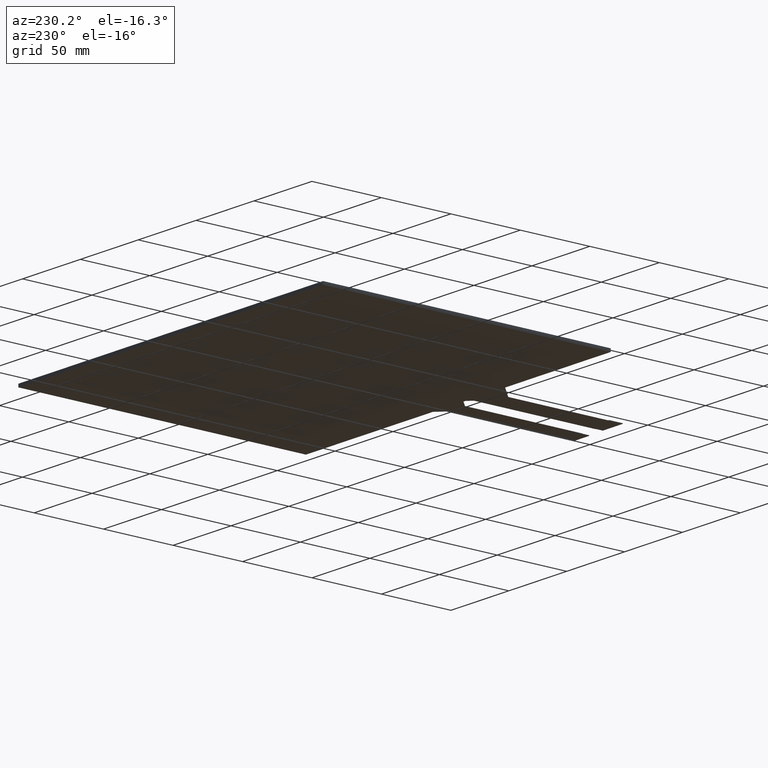
[diagram: clean part render]
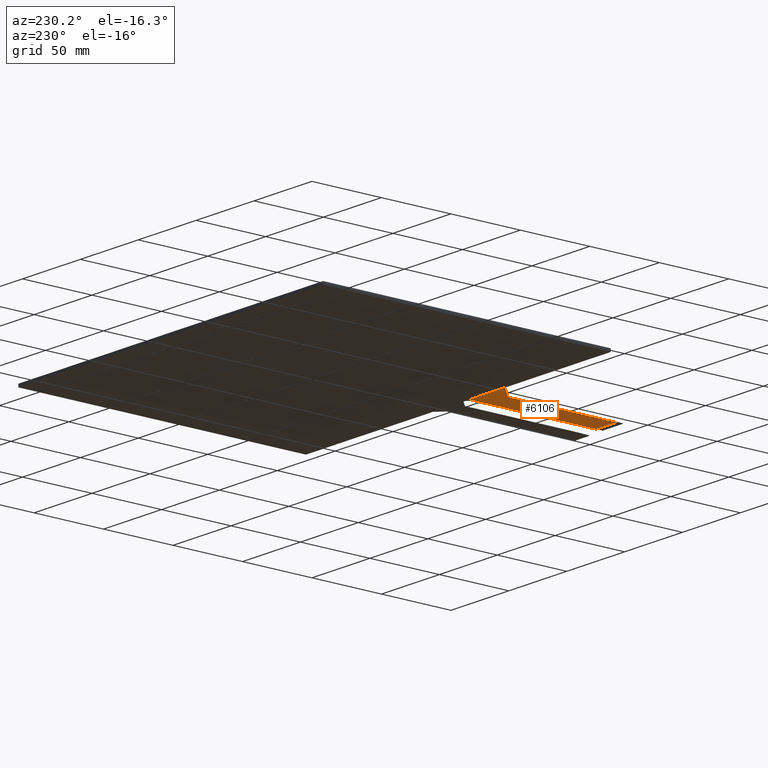
[diagram: same view with one face highlighted and labeled with its STEP entity id]
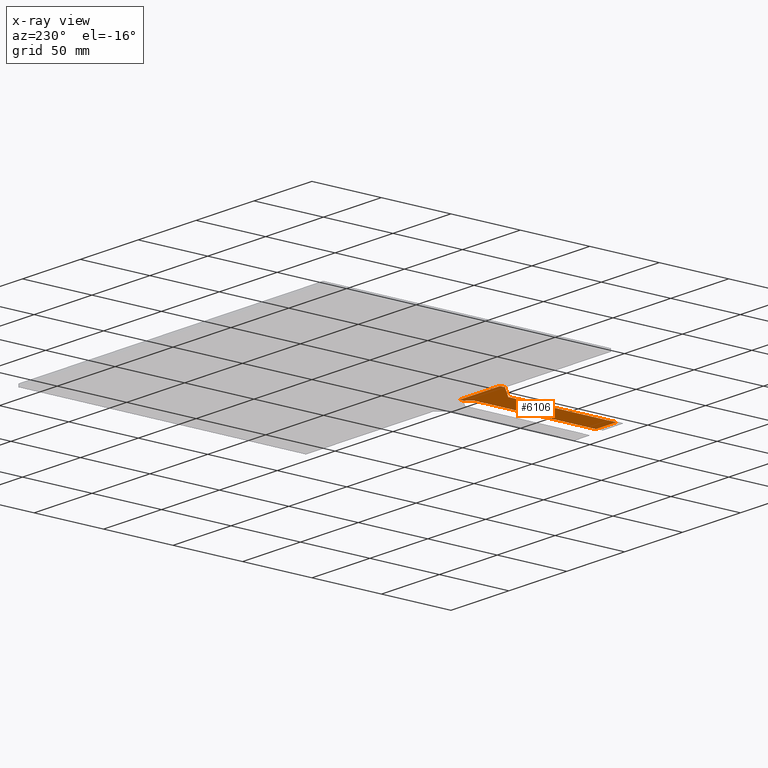
[diagram: x-ray of the same camera — body ghosted, the highlighted face saturated]
A machine part, auxiliary view. The second image highlights one B-rep face of the part: STEP entity #6106.
The next image is the same camera in x-ray: the body ghosted, the highlighted face saturated — about 0% of this face is hidden behind the body in this view.
In plain terms, the highlighted planar face has unit normal (0, 0, -1).
Its self-contained STEP definition (entity closure, byte-faithful):
#336=PLANE('',#6444);
#630=FACE_OUTER_BOUND('',#924,.T.);
#924=EDGE_LOOP('',(#5725,#5726,#5727,#5728,#5729,#5730,#5731,#5732,#5733,
#5734,#5735,#5736));
#972=LINE('',#8013,#1812);
#975=LINE('',#8024,#1815);
#991=LINE('',#8065,#1831);
#1729=LINE('',#9559,#2569);
#1730=LINE('',#9561,#2570);
#1745=LINE('',#9591,#2585);
#1746=LINE('',#9594,#2586);
#1748=LINE('',#9597,#2588);
#1812=VECTOR('',#6520,10.);
#1815=VECTOR('',#6531,10.);
#1831=VECTOR('',#6569,10.);
#2569=VECTOR('',#7827,10.);
#2570=VECTOR('',#7830,10.);
#2585=VECTOR('',#7863,10.);
#2586=VECTOR('',#7866,10.);
#2588=VECTOR('',#7870,10.);
#2632=CIRCLE('',#6156,1.);
#2633=CIRCLE('',#6159,1.);
#2639=CIRCLE('',#6171,1.);
#2640=CIRCLE('',#6174,1.);
#2672=VERTEX_POINT('',#7995);
#2673=VERTEX_POINT('',#7997);
#2679=VERTEX_POINT('',#8011);
#2680=VERTEX_POINT('',#8015);
#2681=VERTEX_POINT('',#8016);
#2695=VERTEX_POINT('',#8057);
#2696=VERTEX_POINT('',#8059);
#2697=VERTEX_POINT('',#8063);
#2698=VERTEX_POINT('',#8067);
#3193=VERTEX_POINT('',#9557);
#3199=VERTEX_POINT('',#9589);
#3200=VERTEX_POINT('',#9593);
#3252=EDGE_CURVE('',#2672,#2673,#2632,.T.);
#3260=EDGE_CURVE('',#2672,#2679,#972,.T.);
#3261=EDGE_CURVE('',#2680,#2681,#2633,.T.);
#3265=EDGE_CURVE('',#2680,#2673,#975,.T.);
#3283=EDGE_CURVE('',#2695,#2696,#2639,.T.);
#3286=EDGE_CURVE('',#2695,#2697,#991,.T.);
#3287=EDGE_CURVE('',#2698,#2697,#2640,.T.);
#4033=EDGE_CURVE('',#2679,#3193,#1729,.T.);
#4034=EDGE_CURVE('',#3193,#2696,#1730,.T.);
#4049=EDGE_CURVE('',#2698,#3199,#1745,.T.);
#4050=EDGE_CURVE('',#3200,#2681,#1746,.T.);
#4052=EDGE_CURVE('',#3200,#3199,#1748,.T.);
#5725=ORIENTED_EDGE('',*,*,#3261,.F.);
#5726=ORIENTED_EDGE('',*,*,#3265,.T.);
#5727=ORIENTED_EDGE('',*,*,#3252,.F.);
#5728=ORIENTED_EDGE('',*,*,#3260,.T.);
#5729=ORIENTED_EDGE('',*,*,#4033,.T.);
#5730=ORIENTED_EDGE('',*,*,#4034,.T.);
#5731=ORIENTED_EDGE('',*,*,#3283,.F.);
#5732=ORIENTED_EDGE('',*,*,#3286,.T.);
#5733=ORIENTED_EDGE('',*,*,#3287,.F.);
#5734=ORIENTED_EDGE('',*,*,#4049,.T.);
#5735=ORIENTED_EDGE('',*,*,#4052,.F.);
#5736=ORIENTED_EDGE('',*,*,#4050,.T.);
#6106=ADVANCED_FACE('',(#630),#336,.T.);
#6156=AXIS2_PLACEMENT_3D('',#7998,#6509,#6510);
#6159=AXIS2_PLACEMENT_3D('',#8017,#6523,#6524);
#6171=AXIS2_PLACEMENT_3D('',#8060,#6563,#6564);
#6174=AXIS2_PLACEMENT_3D('',#8068,#6572,#6573);
#6444=AXIS2_PLACEMENT_3D('',#9596,#7868,#7869);
#6509=DIRECTION('center_axis',(0.,0.,-1.));
#6510=DIRECTION('ref_axis',(-0.923531889914345,0.383521639951696,0.));
#6520=DIRECTION('',(4.79248887762603E-16,-1.,0.));
#6523=DIRECTION('center_axis',(0.,0.,1.));
#6524=DIRECTION('ref_axis',(0.923531889914352,-0.38352163995168,0.));
#6531=DIRECTION('',(-0.708388929935268,-0.705822303377533,0.));
#6563=DIRECTION('center_axis',(0.,0.,-1.));
#6564=DIRECTION('ref_axis',(0.924226414342084,0.38184490965885,0.));
#6569=DIRECTION('',(-0.705822303377533,0.708388929935268,0.));
#6572=DIRECTION('center_axis',(0.,0.,1.));
#6573=DIRECTION('ref_axis',(-0.924226414342084,-0.381844909658848,0.));
#7827=DIRECTION('',(-1.,0.,0.));
#7830=DIRECTION('',(-1.61291480575083E-16,1.,0.));
#7863=DIRECTION('',(2.4671622769448E-15,1.,0.));
#7866=DIRECTION('',(0.,-1.,0.));
#7868=DIRECTION('center_axis',(0.,0.,-1.));
#7869=DIRECTION('ref_axis',(-1.,0.,0.));
#7870=DIRECTION('',(-1.,-6.74651287276966E-17,0.));
#7995=CARTESIAN_POINT('',(-4.75000000000002,-113.101690138011,-0.3));
#7997=CARTESIAN_POINT('',(-4.45582230337756,-112.393301208075,-0.3));
#7998=CARTESIAN_POINT('Origin',(-3.75000000000002,-113.101690138011,-0.3));
#8011=CARTESIAN_POINT('',(-4.74999999999997,-200.35,-0.3));
#8013=CARTESIAN_POINT('',(-4.74999999999997,-205.35,-0.3));
#8015=CARTESIAN_POINT('',(-1.29417769662249,-109.243111835403,-0.3));
#8016=CARTESIAN_POINT('',(-1.00000000000003,-108.534722905468,-0.3));
#8017=CARTESIAN_POINT('Origin',(-2.00000000000002,-108.534722905468,-0.3));
#8024=CARTESIAN_POINT('',(-4.75000000000002,-112.686413043478,-0.3));
#8057=CARTESIAN_POINT('',(-22.5416110700647,-122.457328526044,-0.3));
#8059=CARTESIAN_POINT('',(-22.25,-123.163150829422,-0.3));
#8060=CARTESIAN_POINT('Origin',(-23.25,-123.163150829422,-0.3));
#8063=CARTESIAN_POINT('',(-35.7083889299353,-109.242671473956,-0.3));
#8065=CARTESIAN_POINT('',(-36.,-108.95,-0.3));
#8067=CARTESIAN_POINT('',(-36.,-108.536849170578,-0.3));
#8068=CARTESIAN_POINT('Origin',(-35.,-108.536849170578,-0.3));
#9557=CARTESIAN_POINT('',(-22.25,-200.35,-0.3));
#9559=CARTESIAN_POINT('',(-11.625,-200.35,-0.3));
#9561=CARTESIAN_POINT('',(-22.25,-122.75,-0.3));
#9589=CARTESIAN_POINT('',(-36.,-105.35,-0.3));
#9591=CARTESIAN_POINT('',(-36.,-105.35,-0.3));
#9593=CARTESIAN_POINT('',(-1.00000000000003,-105.35,-0.3));
#9594=CARTESIAN_POINT('',(-1.00000000000003,-108.95,-0.3));
#9596=CARTESIAN_POINT('Origin',(-18.5,-155.35,-0.3));
#9597=CARTESIAN_POINT('',(56.575,-105.35,-0.3));